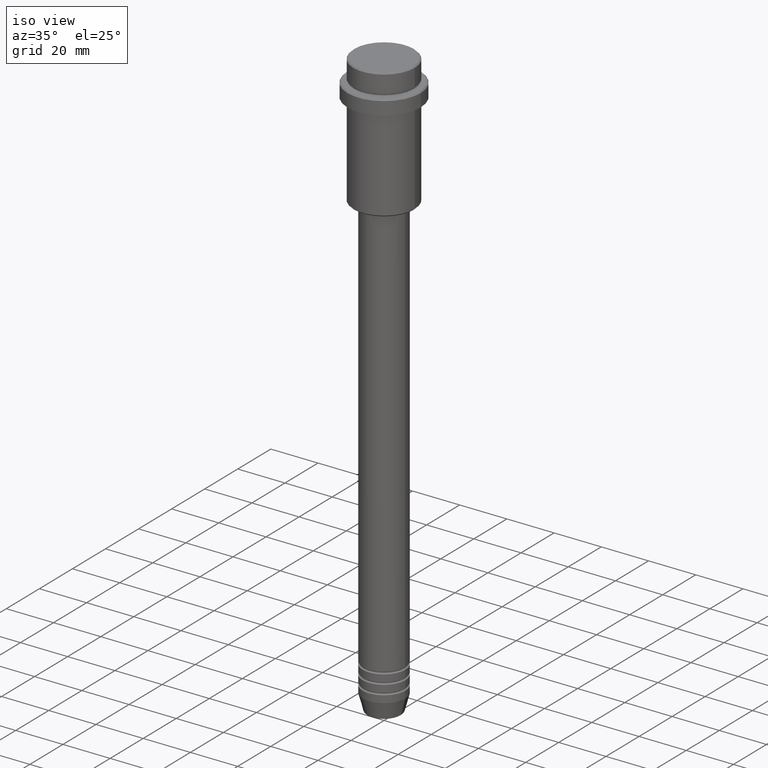
[diagram: clean part render]
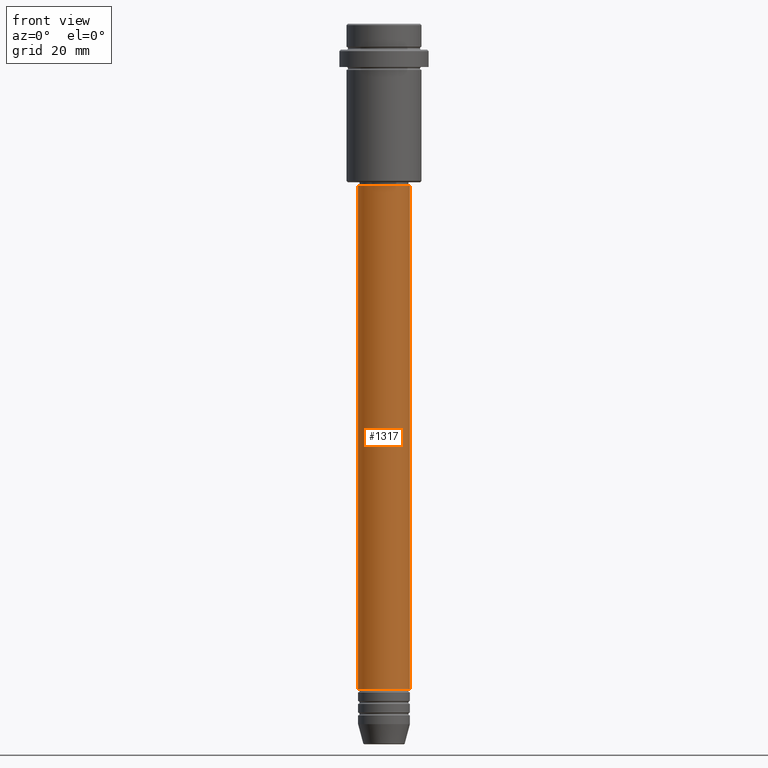
[diagram: tour spotlight — one face highlighted and labeled with its STEP entity id]
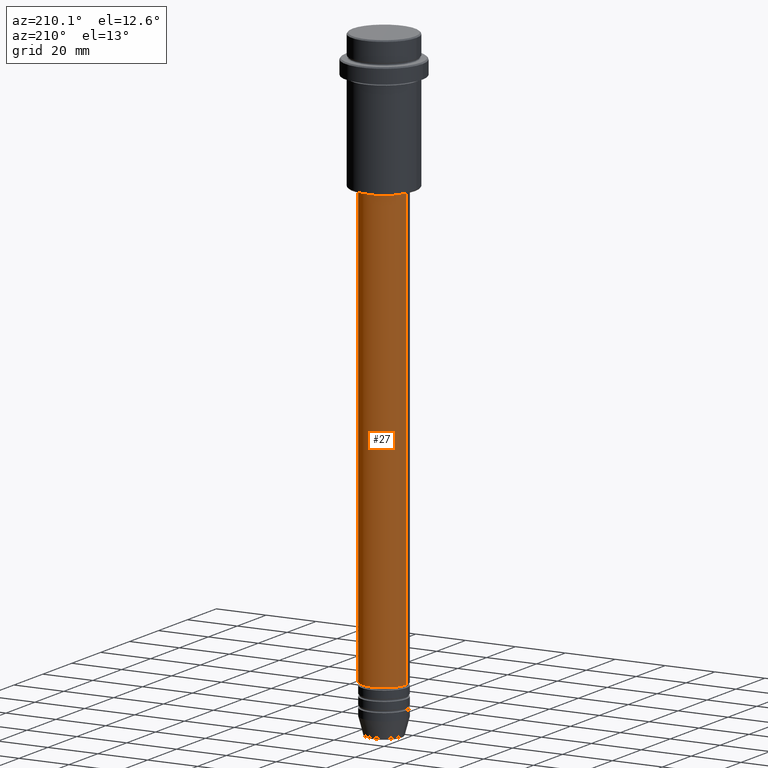
[diagram: tour spotlight — one face highlighted and labeled with its STEP entity id]
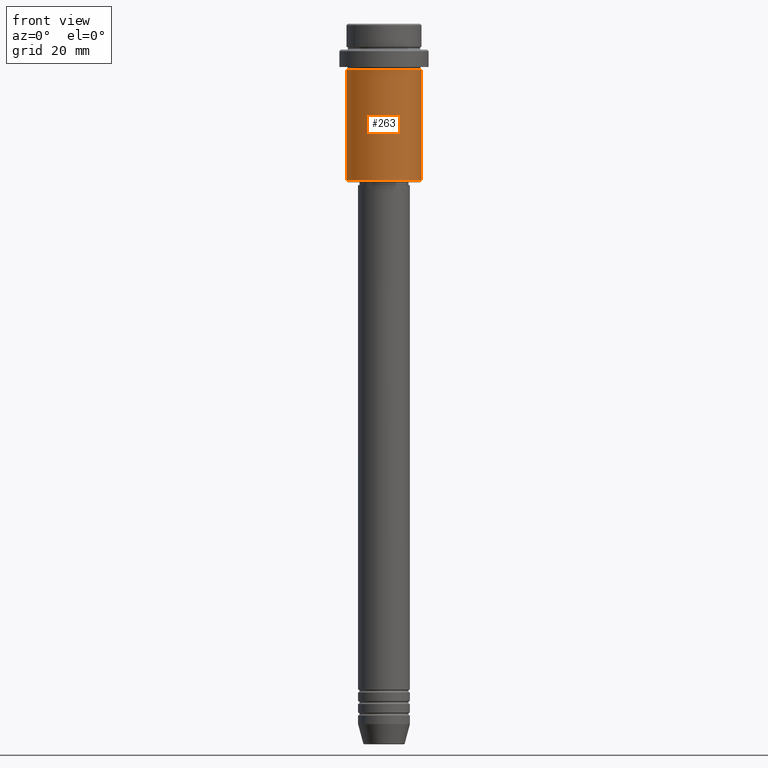
[diagram: tour spotlight — one face highlighted and labeled with its STEP entity id]
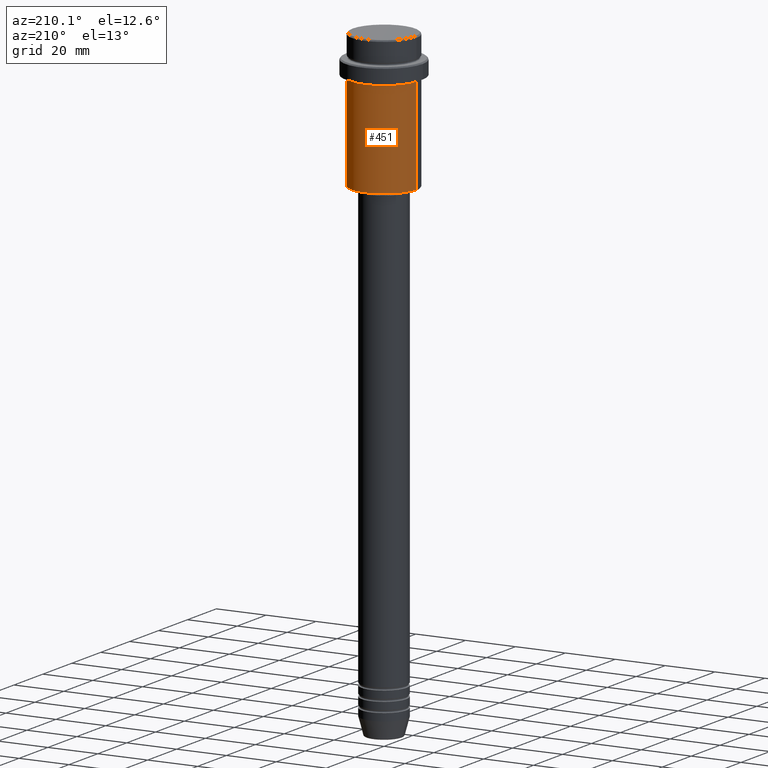
[diagram: tour spotlight — one face highlighted and labeled with its STEP entity id]
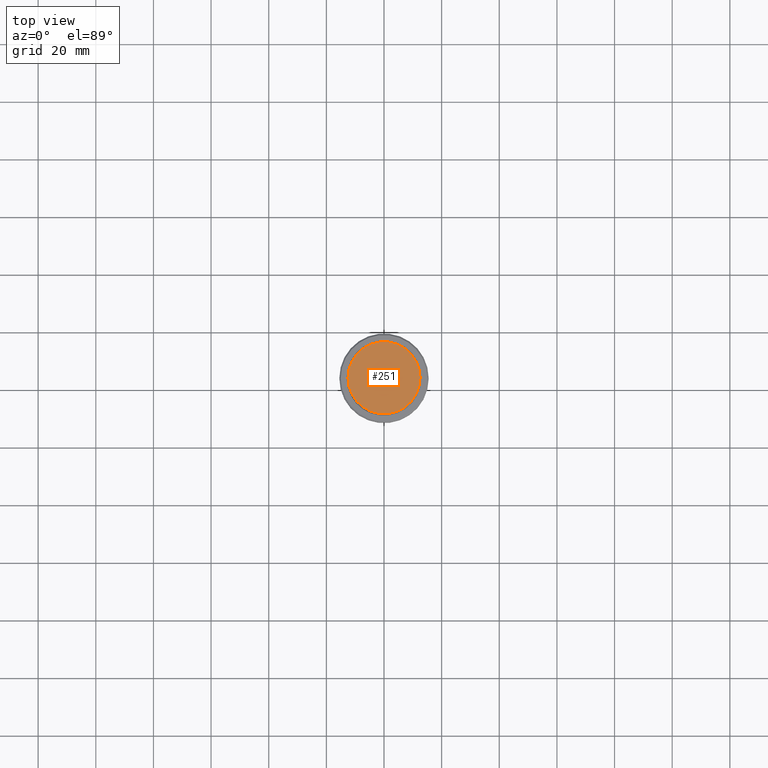
[diagram: tour spotlight — one face highlighted and labeled with its STEP entity id]
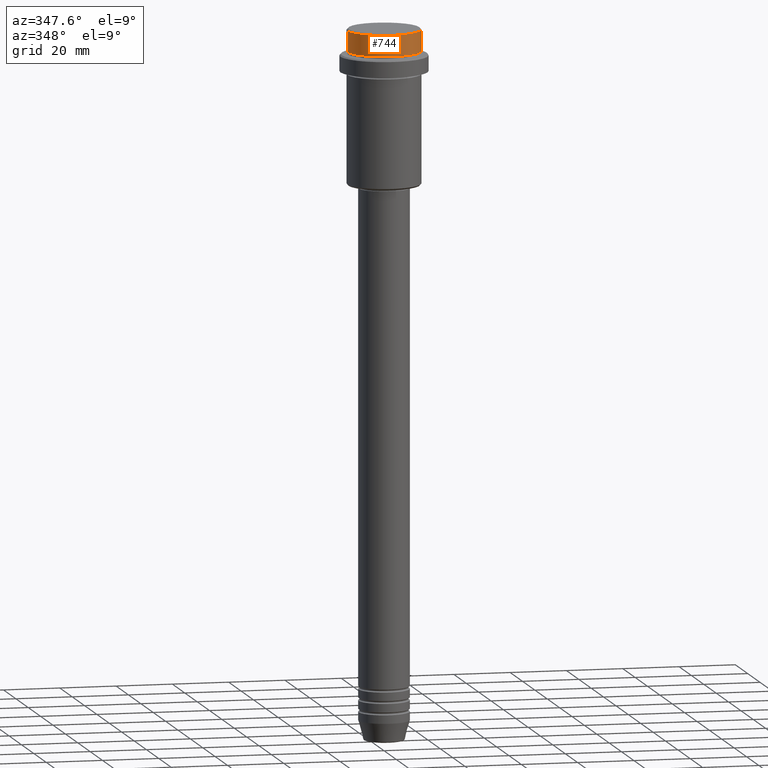
[diagram: tour spotlight — one face highlighted and labeled with its STEP entity id]
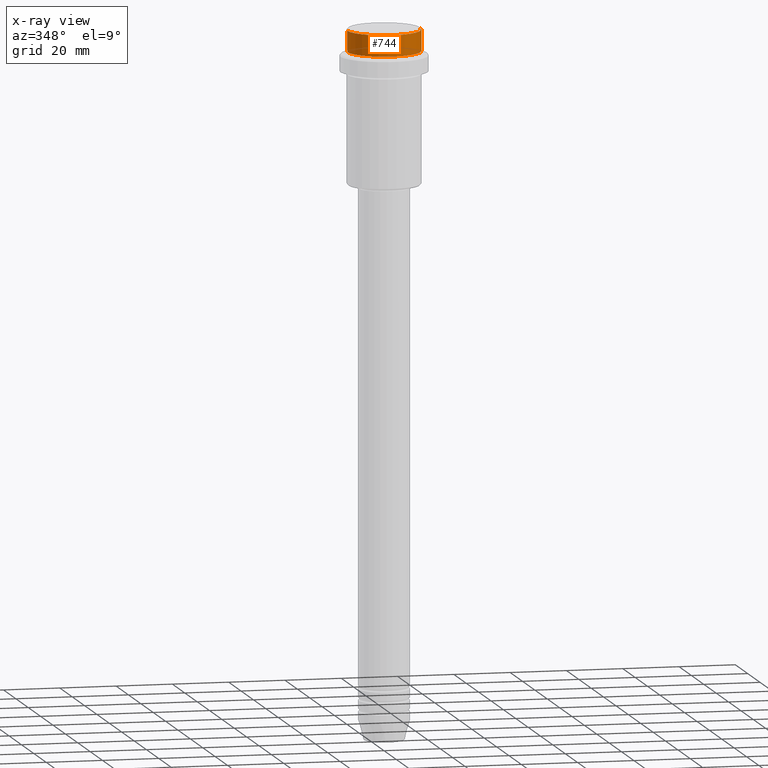
[diagram: x-ray of the same camera — body ghosted, this tour face saturated]
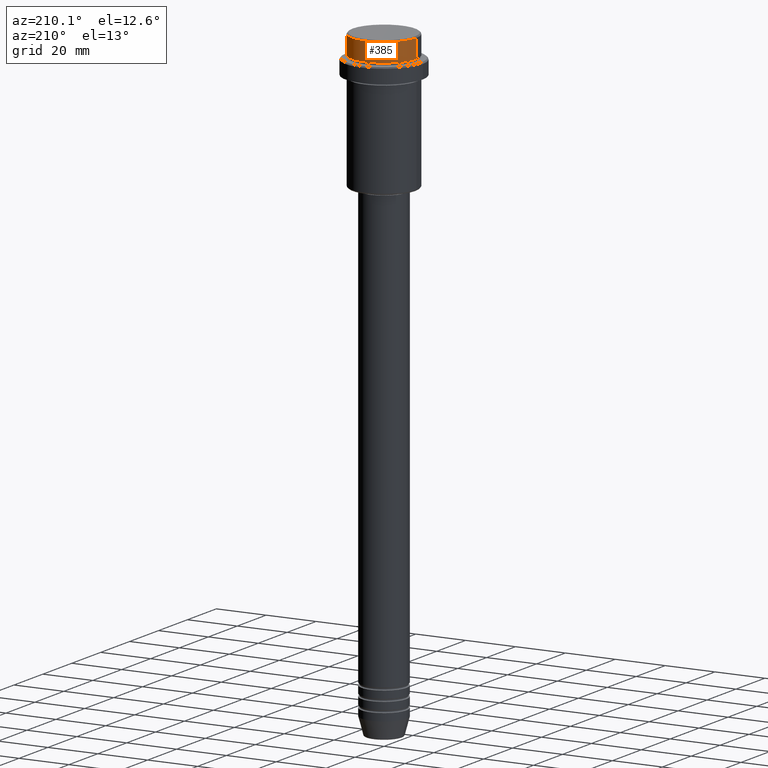
[diagram: tour spotlight — one face highlighted and labeled with its STEP entity id]
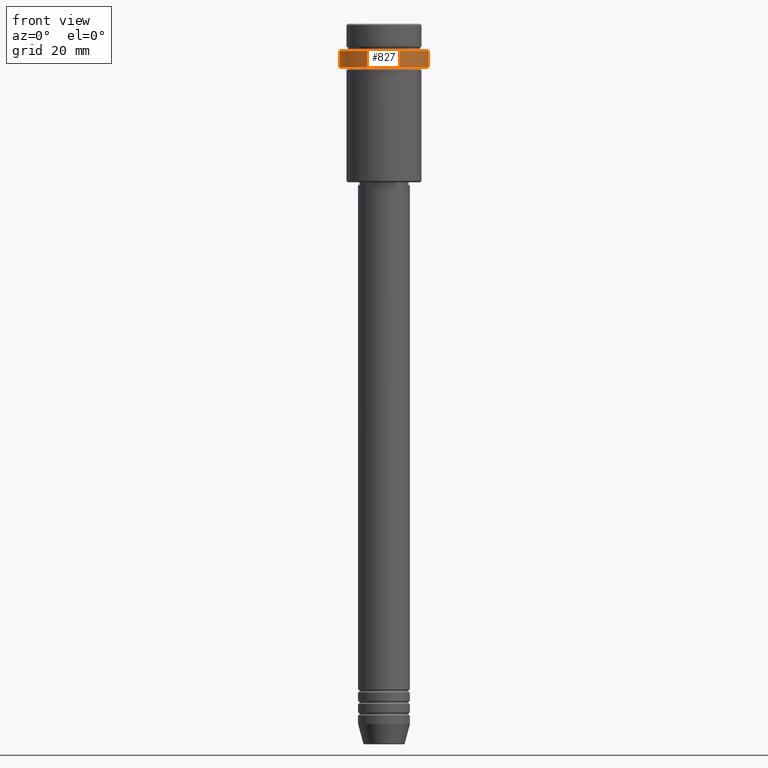
[diagram: tour spotlight — one face highlighted and labeled with its STEP entity id]
A machine part: a face-by-face anatomy tour. The part has 52 B-rep faces; the first image is the clean iso view, then the 8 largest visible faces are spotlighted one at a time (largest first), each with its STEP entity span.

Face 1 — front view, entity #1317. In plain terms, the highlighted cylindrical surface (edge-blend (fillet) strip) has radius 9 mm, axis along (-0, -0, 1).
Definition (entity closure, byte-faithful):
#105 = CARTESIAN_POINT ( 'NONE',  ( 9.000000000000001776, 0.000000000000000000, 0.000000000000000000 ) ) ;
#142 = ORIENTED_EDGE ( 'NONE', *, *, #687, .F. ) ;
#176 = VERTEX_POINT ( 'NONE', #693 ) ;
#200 = ORIENTED_EDGE ( 'NONE', *, *, #606, .F. ) ;
#243 = CARTESIAN_POINT ( 'NONE',  ( 9.000000000000001776, 0.000000000000000000, -56.00000000000000000 ) ) ;
#245 = LINE ( 'NONE', #696, #959 ) ;
#255 = CARTESIAN_POINT ( 'NONE',  ( -9.000000000000001776, 1.102182119232617911E-15, -56.00000000000000000 ) ) ;
#284 = CIRCLE ( 'NONE', #636, 9.000000000000001776 ) ;
#315 = CARTESIAN_POINT ( 'NONE',  ( 0.000000000000000000, 0.000000000000000000, -56.00000000000000000 ) ) ;
#342 = DIRECTION ( 'NONE',  ( 1.000000000000000000, 0.000000000000000000, 0.000000000000000000 ) ) ;
#347 = FACE_OUTER_BOUND ( 'NONE', #671, .T. ) ;
#465 = DIRECTION ( 'NONE',  ( -0.000000000000000000, -0.000000000000000000, 1.000000000000000000 ) ) ;
#483 = VERTEX_POINT ( 'NONE', #243 ) ;
#530 = DIRECTION ( 'NONE',  ( 1.000000000000000000, 0.000000000000000000, 0.000000000000000000 ) ) ;
#551 = DIRECTION ( 'NONE',  ( -0.000000000000000000, -0.000000000000000000, 1.000000000000000000 ) ) ;
#578 = CYLINDRICAL_SURFACE ( 'NONE', #1255, 9.000000000000001776 ) ;
#606 = EDGE_CURVE ( 'NONE', #1014, #625, #245, .T. ) ;
#625 = VERTEX_POINT ( 'NONE', #255 ) ;
#634 = CARTESIAN_POINT ( 'NONE',  ( 0.000000000000000000, 0.000000000000000000, -230.9999999999998863 ) ) ;
#636 = AXIS2_PLACEMENT_3D ( 'NONE', #315, #649, #955 ) ;
#649 = DIRECTION ( 'NONE',  ( -0.000000000000000000, -0.000000000000000000, 1.000000000000000000 ) ) ;
#671 = EDGE_LOOP ( 'NONE', ( #200, #1141, #814, #142 ) ) ;
#687 = EDGE_CURVE ( 'NONE', #625, #483, #284, .T. ) ;
#688 = DIRECTION ( 'NONE',  ( -0.000000000000000000, -0.000000000000000000, 1.000000000000000000 ) ) ;
#693 = CARTESIAN_POINT ( 'NONE',  ( 9.000000000000000000, 0.000000000000000000, -230.9999999999998863 ) ) ;
#696 = CARTESIAN_POINT ( 'NONE',  ( -9.000000000000001776, 1.102182119232617911E-15, 0.000000000000000000 ) ) ;
#738 = EDGE_CURVE ( 'NONE', #1014, #176, #978, .T. ) ;
#814 = ORIENTED_EDGE ( 'NONE', *, *, #1221, .T. ) ;
#826 = CARTESIAN_POINT ( 'NONE',  ( -9.000000000000000000, 1.102182119232617714E-15, -230.9999999999998863 ) ) ;
#928 = VECTOR ( 'NONE', #551, 1000.000000000000000 ) ;
#955 = DIRECTION ( 'NONE',  ( 1.000000000000000000, 0.000000000000000000, 0.000000000000000000 ) ) ;
#959 = VECTOR ( 'NONE', #688, 1000.000000000000000 ) ;
#961 = LINE ( 'NONE', #105, #928 ) ;
#978 = CIRCLE ( 'NONE', #1177, 9.000000000000000000 ) ;
#1014 = VERTEX_POINT ( 'NONE', #826 ) ;
#1102 = CARTESIAN_POINT ( 'NONE',  ( 0.000000000000000000, 0.000000000000000000, 0.000000000000000000 ) ) ;
#1141 = ORIENTED_EDGE ( 'NONE', *, *, #738, .T. ) ;
#1177 = AXIS2_PLACEMENT_3D ( 'NONE', #634, #1390, #530 ) ;
#1221 = EDGE_CURVE ( 'NONE', #176, #483, #961, .T. ) ;
#1255 = AXIS2_PLACEMENT_3D ( 'NONE', #1102, #465, #342 ) ;
#1317 = ADVANCED_FACE ( 'NONE', ( #347 ), #578, .T. ) ;
#1390 = DIRECTION ( 'NONE',  ( -0.000000000000000000, -0.000000000000000000, 1.000000000000000000 ) ) ;

Face 2 — auxiliary view, entity #27. In plain terms, the highlighted cylindrical surface (edge-blend (fillet) strip) has radius 9 mm, axis along (-0, -0, 1).
Definition (entity closure, byte-faithful):
#27 = ADVANCED_FACE ( 'NONE', ( #1387 ), #1393, .T. ) ;
#105 = CARTESIAN_POINT ( 'NONE',  ( 9.000000000000001776, 0.000000000000000000, 0.000000000000000000 ) ) ;
#176 = VERTEX_POINT ( 'NONE', #693 ) ;
#183 = ORIENTED_EDGE ( 'NONE', *, *, #1221, .F. ) ;
#189 = DIRECTION ( 'NONE',  ( 1.000000000000000000, 0.000000000000000000, 0.000000000000000000 ) ) ;
#243 = CARTESIAN_POINT ( 'NONE',  ( 9.000000000000001776, 0.000000000000000000, -56.00000000000000000 ) ) ;
#245 = LINE ( 'NONE', #696, #959 ) ;
#255 = CARTESIAN_POINT ( 'NONE',  ( -9.000000000000001776, 1.102182119232617911E-15, -56.00000000000000000 ) ) ;
#269 = DIRECTION ( 'NONE',  ( -0.000000000000000000, -0.000000000000000000, 1.000000000000000000 ) ) ;
#405 = EDGE_CURVE ( 'NONE', #176, #1014, #1334, .T. ) ;
#483 = VERTEX_POINT ( 'NONE', #243 ) ;
#551 = DIRECTION ( 'NONE',  ( -0.000000000000000000, -0.000000000000000000, 1.000000000000000000 ) ) ;
#606 = EDGE_CURVE ( 'NONE', #1014, #625, #245, .T. ) ;
#621 = CARTESIAN_POINT ( 'NONE',  ( 0.000000000000000000, 0.000000000000000000, -230.9999999999998863 ) ) ;
#625 = VERTEX_POINT ( 'NONE', #255 ) ;
#664 = EDGE_LOOP ( 'NONE', ( #689, #1174, #1119, #183 ) ) ;
#688 = DIRECTION ( 'NONE',  ( -0.000000000000000000, -0.000000000000000000, 1.000000000000000000 ) ) ;
#689 = ORIENTED_EDGE ( 'NONE', *, *, #405, .T. ) ;
#693 = CARTESIAN_POINT ( 'NONE',  ( 9.000000000000000000, 0.000000000000000000, -230.9999999999998863 ) ) ;
#696 = CARTESIAN_POINT ( 'NONE',  ( -9.000000000000001776, 1.102182119232617911E-15, 0.000000000000000000 ) ) ;
#710 = CARTESIAN_POINT ( 'NONE',  ( 0.000000000000000000, 0.000000000000000000, 0.000000000000000000 ) ) ;
#742 = DIRECTION ( 'NONE',  ( -0.000000000000000000, -0.000000000000000000, 1.000000000000000000 ) ) ;
#789 = AXIS2_PLACEMENT_3D ( 'NONE', #1173, #1296, #1078 ) ;
#809 = EDGE_CURVE ( 'NONE', #483, #625, #1293, .T. ) ;
#826 = CARTESIAN_POINT ( 'NONE',  ( -9.000000000000000000, 1.102182119232617714E-15, -230.9999999999998863 ) ) ;
#928 = VECTOR ( 'NONE', #551, 1000.000000000000000 ) ;
#938 = DIRECTION ( 'NONE',  ( 1.000000000000000000, 0.000000000000000000, 0.000000000000000000 ) ) ;
#952 = AXIS2_PLACEMENT_3D ( 'NONE', #621, #742, #189 ) ;
#959 = VECTOR ( 'NONE', #688, 1000.000000000000000 ) ;
#961 = LINE ( 'NONE', #105, #928 ) ;
#1014 = VERTEX_POINT ( 'NONE', #826 ) ;
#1078 = DIRECTION ( 'NONE',  ( 1.000000000000000000, 0.000000000000000000, 0.000000000000000000 ) ) ;
#1119 = ORIENTED_EDGE ( 'NONE', *, *, #809, .F. ) ;
#1173 = CARTESIAN_POINT ( 'NONE',  ( 0.000000000000000000, 0.000000000000000000, -56.00000000000000000 ) ) ;
#1174 = ORIENTED_EDGE ( 'NONE', *, *, #606, .T. ) ;
#1183 = AXIS2_PLACEMENT_3D ( 'NONE', #710, #269, #938 ) ;
#1221 = EDGE_CURVE ( 'NONE', #176, #483, #961, .T. ) ;
#1293 = CIRCLE ( 'NONE', #789, 9.000000000000001776 ) ;
#1296 = DIRECTION ( 'NONE',  ( -0.000000000000000000, -0.000000000000000000, 1.000000000000000000 ) ) ;
#1334 = CIRCLE ( 'NONE', #952, 9.000000000000000000 ) ;
#1387 = FACE_OUTER_BOUND ( 'NONE', #664, .T. ) ;
#1393 = CYLINDRICAL_SURFACE ( 'NONE', #1183, 9.000000000000001776 ) ;

Face 3 — front view, entity #263. In plain terms, the highlighted cylindrical surface (partial cylindrical patch) has radius 13 mm, axis along (-0, -0, 1).
Definition (entity closure, byte-faithful):
#50 = FACE_OUTER_BOUND ( 'NONE', #459, .T. ) ;
#93 = ORIENTED_EDGE ( 'NONE', *, *, #1212, .T. ) ;
#133 = DIRECTION ( 'NONE',  ( -0.000000000000000000, -0.000000000000000000, 1.000000000000000000 ) ) ;
#137 = ORIENTED_EDGE ( 'NONE', *, *, #1327, .T. ) ;
#229 = CARTESIAN_POINT ( 'NONE',  ( -13.00000000000000000, 1.592040838891559095E-15, 0.000000000000000000 ) ) ;
#234 = VERTEX_POINT ( 'NONE', #1195 ) ;
#263 = ADVANCED_FACE ( 'NONE', ( #50 ), #489, .T. ) ;
#316 = ORIENTED_EDGE ( 'NONE', *, *, #1368, .F. ) ;
#390 = DIRECTION ( 'NONE',  ( -0.000000000000000000, -0.000000000000000000, 1.000000000000000000 ) ) ;
#459 = EDGE_LOOP ( 'NONE', ( #316, #93, #137, #526 ) ) ;
#470 = CARTESIAN_POINT ( 'NONE',  ( 0.000000000000000000, 0.000000000000000000, -16.00000000000000000 ) ) ;
#481 = CARTESIAN_POINT ( 'NONE',  ( 0.000000000000000000, 0.000000000000000000, 0.000000000000000000 ) ) ;
#489 = CYLINDRICAL_SURFACE ( 'NONE', #522, 13.00000000000000000 ) ;
#507 = CARTESIAN_POINT ( 'NONE',  ( 13.00000000000000000, 0.000000000000000000, -54.50000000000000000 ) ) ;
#522 = AXIS2_PLACEMENT_3D ( 'NONE', #481, #605, #1046 ) ;
#526 = ORIENTED_EDGE ( 'NONE', *, *, #1021, .F. ) ;
#541 = CARTESIAN_POINT ( 'NONE',  ( 13.00000000000000000, 0.000000000000000000, -16.00000000000000000 ) ) ;
#570 = VERTEX_POINT ( 'NONE', #507 ) ;
#605 = DIRECTION ( 'NONE',  ( -0.000000000000000000, -0.000000000000000000, 1.000000000000000000 ) ) ;
#659 = DIRECTION ( 'NONE',  ( -1.000000000000000000, 0.000000000000000000, 0.000000000000000000 ) ) ;
#677 = DIRECTION ( 'NONE',  ( -0.000000000000000000, -0.000000000000000000, 1.000000000000000000 ) ) ;
#749 = CIRCLE ( 'NONE', #856, 13.00000000000000000 ) ;
#772 = CIRCLE ( 'NONE', #957, 13.00000000000000000 ) ;
#793 = VECTOR ( 'NONE', #133, 1000.000000000000000 ) ;
#856 = AXIS2_PLACEMENT_3D ( 'NONE', #470, #390, #1332 ) ;
#859 = CARTESIAN_POINT ( 'NONE',  ( -13.00000000000000000, 1.592040838891559095E-15, -54.50000000000000000 ) ) ;
#957 = AXIS2_PLACEMENT_3D ( 'NONE', #1403, #1196, #659 ) ;
#1021 = EDGE_CURVE ( 'NONE', #234, #1170, #749, .T. ) ;
#1046 = DIRECTION ( 'NONE',  ( 1.000000000000000000, 0.000000000000000000, 0.000000000000000000 ) ) ;
#1106 = CARTESIAN_POINT ( 'NONE',  ( 13.00000000000000000, 0.000000000000000000, 0.000000000000000000 ) ) ;
#1109 = VERTEX_POINT ( 'NONE', #859 ) ;
#1120 = LINE ( 'NONE', #1106, #793 ) ;
#1170 = VERTEX_POINT ( 'NONE', #541 ) ;
#1195 = CARTESIAN_POINT ( 'NONE',  ( -13.00000000000000000, 1.592040838891559095E-15, -16.00000000000000000 ) ) ;
#1196 = DIRECTION ( 'NONE',  ( -0.000000000000000000, -0.000000000000000000, 1.000000000000000000 ) ) ;
#1212 = EDGE_CURVE ( 'NONE', #1109, #570, #772, .T. ) ;
#1218 = LINE ( 'NONE', #229, #1408 ) ;
#1327 = EDGE_CURVE ( 'NONE', #570, #1170, #1120, .T. ) ;
#1332 = DIRECTION ( 'NONE',  ( 1.000000000000000000, 0.000000000000000000, 0.000000000000000000 ) ) ;
#1368 = EDGE_CURVE ( 'NONE', #1109, #234, #1218, .T. ) ;
#1403 = CARTESIAN_POINT ( 'NONE',  ( 0.000000000000000000, 0.000000000000000000, -54.50000000000000000 ) ) ;
#1408 = VECTOR ( 'NONE', #677, 1000.000000000000000 ) ;

Face 4 — auxiliary view, entity #451. In plain terms, the highlighted cylindrical surface (partial cylindrical patch) has radius 13 mm, axis along (-0, -0, 1).
Definition (entity closure, byte-faithful):
#133 = DIRECTION ( 'NONE',  ( -0.000000000000000000, -0.000000000000000000, 1.000000000000000000 ) ) ;
#229 = CARTESIAN_POINT ( 'NONE',  ( -13.00000000000000000, 1.592040838891559095E-15, 0.000000000000000000 ) ) ;
#234 = VERTEX_POINT ( 'NONE', #1195 ) ;
#291 = DIRECTION ( 'NONE',  ( 1.000000000000000000, 0.000000000000000000, 0.000000000000000000 ) ) ;
#321 = ORIENTED_EDGE ( 'NONE', *, *, #1327, .F. ) ;
#451 = ADVANCED_FACE ( 'NONE', ( #1055 ), #505, .T. ) ;
#468 = AXIS2_PLACEMENT_3D ( 'NONE', #1369, #939, #291 ) ;
#505 = CYLINDRICAL_SURFACE ( 'NONE', #468, 13.00000000000000000 ) ;
#507 = CARTESIAN_POINT ( 'NONE',  ( 13.00000000000000000, 0.000000000000000000, -54.50000000000000000 ) ) ;
#541 = CARTESIAN_POINT ( 'NONE',  ( 13.00000000000000000, 0.000000000000000000, -16.00000000000000000 ) ) ;
#570 = VERTEX_POINT ( 'NONE', #507 ) ;
#677 = DIRECTION ( 'NONE',  ( -0.000000000000000000, -0.000000000000000000, 1.000000000000000000 ) ) ;
#701 = AXIS2_PLACEMENT_3D ( 'NONE', #1328, #766, #1198 ) ;
#709 = EDGE_CURVE ( 'NONE', #1170, #234, #927, .T. ) ;
#766 = DIRECTION ( 'NONE',  ( -0.000000000000000000, -0.000000000000000000, 1.000000000000000000 ) ) ;
#793 = VECTOR ( 'NONE', #133, 1000.000000000000000 ) ;
#844 = DIRECTION ( 'NONE',  ( 1.000000000000000000, 0.000000000000000000, 0.000000000000000000 ) ) ;
#859 = CARTESIAN_POINT ( 'NONE',  ( -13.00000000000000000, 1.592040838891559095E-15, -54.50000000000000000 ) ) ;
#872 = EDGE_CURVE ( 'NONE', #570, #1109, #1335, .T. ) ;
#927 = CIRCLE ( 'NONE', #1076, 13.00000000000000000 ) ;
#939 = DIRECTION ( 'NONE',  ( -0.000000000000000000, -0.000000000000000000, 1.000000000000000000 ) ) ;
#969 = DIRECTION ( 'NONE',  ( -0.000000000000000000, -0.000000000000000000, 1.000000000000000000 ) ) ;
#1055 = FACE_OUTER_BOUND ( 'NONE', #1117, .T. ) ;
#1076 = AXIS2_PLACEMENT_3D ( 'NONE', #1360, #969, #844 ) ;
#1101 = ORIENTED_EDGE ( 'NONE', *, *, #872, .T. ) ;
#1106 = CARTESIAN_POINT ( 'NONE',  ( 13.00000000000000000, 0.000000000000000000, 0.000000000000000000 ) ) ;
#1109 = VERTEX_POINT ( 'NONE', #859 ) ;
#1117 = EDGE_LOOP ( 'NONE', ( #1101, #1270, #1362, #321 ) ) ;
#1120 = LINE ( 'NONE', #1106, #793 ) ;
#1170 = VERTEX_POINT ( 'NONE', #541 ) ;
#1195 = CARTESIAN_POINT ( 'NONE',  ( -13.00000000000000000, 1.592040838891559095E-15, -16.00000000000000000 ) ) ;
#1198 = DIRECTION ( 'NONE',  ( -1.000000000000000000, 0.000000000000000000, 0.000000000000000000 ) ) ;
#1218 = LINE ( 'NONE', #229, #1408 ) ;
#1270 = ORIENTED_EDGE ( 'NONE', *, *, #1368, .T. ) ;
#1327 = EDGE_CURVE ( 'NONE', #570, #1170, #1120, .T. ) ;
#1328 = CARTESIAN_POINT ( 'NONE',  ( 0.000000000000000000, 0.000000000000000000, -54.50000000000000000 ) ) ;
#1335 = CIRCLE ( 'NONE', #701, 13.00000000000000000 ) ;
#1360 = CARTESIAN_POINT ( 'NONE',  ( 0.000000000000000000, 0.000000000000000000, -16.00000000000000000 ) ) ;
#1362 = ORIENTED_EDGE ( 'NONE', *, *, #709, .F. ) ;
#1368 = EDGE_CURVE ( 'NONE', #1109, #234, #1218, .T. ) ;
#1369 = CARTESIAN_POINT ( 'NONE',  ( 0.000000000000000000, 0.000000000000000000, 0.000000000000000000 ) ) ;
#1408 = VECTOR ( 'NONE', #677, 1000.000000000000000 ) ;

Face 5 — top view, entity #251. In plain terms, the highlighted planar face has unit normal (0, -0, 1).
Definition (entity closure, byte-faithful):
#45 = VERTEX_POINT ( 'NONE', #765 ) ;
#127 = DIRECTION ( 'NONE',  ( -0.000000000000000000, -0.000000000000000000, 1.000000000000000000 ) ) ;
#251 = ADVANCED_FACE ( 'NONE', ( #988 ), #1414, .T. ) ;
#270 = DIRECTION ( 'NONE',  ( 1.000000000000000000, 0.000000000000000000, 0.000000000000000000 ) ) ;
#381 = CIRCLE ( 'NONE', #660, 12.49999999999998579 ) ;
#383 = CIRCLE ( 'NONE', #1161, 12.49999999999998579 ) ;
#420 = VERTEX_POINT ( 'NONE', #919 ) ;
#550 = CARTESIAN_POINT ( 'NONE',  ( 0.000000000000000000, 0.000000000000000000, 0.000000000000000000 ) ) ;
#623 = EDGE_LOOP ( 'NONE', ( #728, #1382 ) ) ;
#632 = DIRECTION ( 'NONE',  ( 1.000000000000000000, 0.000000000000000000, 0.000000000000000000 ) ) ;
#660 = AXIS2_PLACEMENT_3D ( 'NONE', #1389, #1301, #632 ) ;
#728 = ORIENTED_EDGE ( 'NONE', *, *, #1380, .T. ) ;
#765 = CARTESIAN_POINT ( 'NONE',  ( 12.49999999999998579, 1.561424668912874125E-15, 0.000000000000000000 ) ) ;
#870 = DIRECTION ( 'NONE',  ( 0.000000000000000000, -0.000000000000000000, 1.000000000000000000 ) ) ;
#919 = CARTESIAN_POINT ( 'NONE',  ( -12.49999999999998579, 0.000000000000000000, 0.000000000000000000 ) ) ;
#958 = AXIS2_PLACEMENT_3D ( 'NONE', #550, #870, #270 ) ;
#988 = FACE_OUTER_BOUND ( 'NONE', #623, .T. ) ;
#1013 = DIRECTION ( 'NONE',  ( 1.000000000000000000, 0.000000000000000000, 0.000000000000000000 ) ) ;
#1114 = CARTESIAN_POINT ( 'NONE',  ( 0.000000000000000000, 0.000000000000000000, 0.000000000000000000 ) ) ;
#1161 = AXIS2_PLACEMENT_3D ( 'NONE', #1114, #127, #1013 ) ;
#1171 = EDGE_CURVE ( 'NONE', #45, #420, #381, .T. ) ;
#1301 = DIRECTION ( 'NONE',  ( -0.000000000000000000, -0.000000000000000000, 1.000000000000000000 ) ) ;
#1380 = EDGE_CURVE ( 'NONE', #420, #45, #383, .T. ) ;
#1382 = ORIENTED_EDGE ( 'NONE', *, *, #1171, .T. ) ;
#1389 = CARTESIAN_POINT ( 'NONE',  ( 0.000000000000000000, 0.000000000000000000, 0.000000000000000000 ) ) ;
#1414 = PLANE ( 'NONE',  #958 ) ;

Face 6 — auxiliary view, entity #744. An x-ray twin of the same camera follows (body ghosted, this face saturated) — the face is partly hidden behind the body. In plain terms, the highlighted cylindrical surface (partial cylindrical patch) has radius 13 mm, axis along (-0, -0, 1).
Definition (entity closure, byte-faithful):
#2 = VERTEX_POINT ( 'NONE', #166 ) ;
#58 = VECTOR ( 'NONE', #300, 1000.000000000000000 ) ;
#59 = CARTESIAN_POINT ( 'NONE',  ( -12.99999999999999822, 1.592040838891558898E-15, 0.000000000000000000 ) ) ;
#66 = DIRECTION ( 'NONE',  ( 1.000000000000000000, 0.000000000000000000, 0.000000000000000000 ) ) ;
#89 = FACE_OUTER_BOUND ( 'NONE', #1297, .T. ) ;
#125 = ORIENTED_EDGE ( 'NONE', *, *, #366, .T. ) ;
#166 = CARTESIAN_POINT ( 'NONE',  ( 12.99999999999999822, 0.000000000000000000, -7.999999999999998224 ) ) ;
#182 = CYLINDRICAL_SURFACE ( 'NONE', #445, 12.99999999999999822 ) ;
#248 = CARTESIAN_POINT ( 'NONE',  ( -12.99999999999999822, 1.592040838891558898E-15, -0.5000000000000037748 ) ) ;
#300 = DIRECTION ( 'NONE',  ( -0.000000000000000000, -0.000000000000000000, 1.000000000000000000 ) ) ;
#337 = AXIS2_PLACEMENT_3D ( 'NONE', #1051, #1039, #1134 ) ;
#366 = EDGE_CURVE ( 'NONE', #569, #1009, #1375, .T. ) ;
#372 = EDGE_CURVE ( 'NONE', #686, #1009, #1053, .T. ) ;
#392 = ORIENTED_EDGE ( 'NONE', *, *, #372, .F. ) ;
#396 = EDGE_CURVE ( 'NONE', #2, #569, #751, .T. ) ;
#418 = DIRECTION ( 'NONE',  ( -0.000000000000000000, -0.000000000000000000, 1.000000000000000000 ) ) ;
#445 = AXIS2_PLACEMENT_3D ( 'NONE', #821, #418, #1289 ) ;
#503 = VECTOR ( 'NONE', #937, 1000.000000000000000 ) ;
#569 = VERTEX_POINT ( 'NONE', #1350 ) ;
#611 = DIRECTION ( 'NONE',  ( 0.000000000000000000, 0.000000000000000000, -1.000000000000000000 ) ) ;
#686 = VERTEX_POINT ( 'NONE', #1087 ) ;
#692 = ORIENTED_EDGE ( 'NONE', *, *, #396, .T. ) ;
#706 = CIRCLE ( 'NONE', #337, 12.99999999999999822 ) ;
#713 = CARTESIAN_POINT ( 'NONE',  ( 0.000000000000000000, 0.000000000000000000, -0.5000000000000037748 ) ) ;
#744 = ADVANCED_FACE ( 'NONE', ( #89 ), #182, .T. ) ;
#751 = LINE ( 'NONE', #1155, #58 ) ;
#821 = CARTESIAN_POINT ( 'NONE',  ( 0.000000000000000000, 0.000000000000000000, 0.000000000000000000 ) ) ;
#937 = DIRECTION ( 'NONE',  ( -0.000000000000000000, -0.000000000000000000, 1.000000000000000000 ) ) ;
#1009 = VERTEX_POINT ( 'NONE', #248 ) ;
#1039 = DIRECTION ( 'NONE',  ( -0.000000000000000000, -0.000000000000000000, 1.000000000000000000 ) ) ;
#1051 = CARTESIAN_POINT ( 'NONE',  ( 0.000000000000000000, 0.000000000000000000, -7.999999999999998224 ) ) ;
#1053 = LINE ( 'NONE', #59, #503 ) ;
#1087 = CARTESIAN_POINT ( 'NONE',  ( -12.99999999999999822, 1.592040838891558898E-15, -7.999999999999998224 ) ) ;
#1090 = AXIS2_PLACEMENT_3D ( 'NONE', #713, #611, #66 ) ;
#1134 = DIRECTION ( 'NONE',  ( 1.000000000000000000, 0.000000000000000000, 0.000000000000000000 ) ) ;
#1155 = CARTESIAN_POINT ( 'NONE',  ( 12.99999999999999822, 0.000000000000000000, 0.000000000000000000 ) ) ;
#1200 = ORIENTED_EDGE ( 'NONE', *, *, #1384, .T. ) ;
#1289 = DIRECTION ( 'NONE',  ( 1.000000000000000000, 0.000000000000000000, 0.000000000000000000 ) ) ;
#1297 = EDGE_LOOP ( 'NONE', ( #392, #1200, #692, #125 ) ) ;
#1350 = CARTESIAN_POINT ( 'NONE',  ( 12.99999999999999822, 0.000000000000000000, -0.5000000000000037748 ) ) ;
#1375 = CIRCLE ( 'NONE', #1090, 12.99999999999999822 ) ;
#1384 = EDGE_CURVE ( 'NONE', #686, #2, #706, .T. ) ;

Face 7 — auxiliary view, entity #385. In plain terms, the highlighted cylindrical surface (partial cylindrical patch) has radius 13 mm, axis along (-0, -0, 1).
Definition (entity closure, byte-faithful):
#2 = VERTEX_POINT ( 'NONE', #166 ) ;
#58 = VECTOR ( 'NONE', #300, 1000.000000000000000 ) ;
#59 = CARTESIAN_POINT ( 'NONE',  ( -12.99999999999999822, 1.592040838891558898E-15, 0.000000000000000000 ) ) ;
#70 = DIRECTION ( 'NONE',  ( -0.000000000000000000, -0.000000000000000000, 1.000000000000000000 ) ) ;
#94 = EDGE_CURVE ( 'NONE', #2, #686, #287, .T. ) ;
#146 = DIRECTION ( 'NONE',  ( 0.000000000000000000, 0.000000000000000000, -1.000000000000000000 ) ) ;
#166 = CARTESIAN_POINT ( 'NONE',  ( 12.99999999999999822, 0.000000000000000000, -7.999999999999998224 ) ) ;
#184 = DIRECTION ( 'NONE',  ( 1.000000000000000000, 0.000000000000000000, 0.000000000000000000 ) ) ;
#228 = FACE_OUTER_BOUND ( 'NONE', #609, .T. ) ;
#248 = CARTESIAN_POINT ( 'NONE',  ( -12.99999999999999822, 1.592040838891558898E-15, -0.5000000000000037748 ) ) ;
#280 = ORIENTED_EDGE ( 'NONE', *, *, #515, .T. ) ;
#287 = CIRCLE ( 'NONE', #1405, 12.99999999999999822 ) ;
#300 = DIRECTION ( 'NONE',  ( -0.000000000000000000, -0.000000000000000000, 1.000000000000000000 ) ) ;
#322 = ORIENTED_EDGE ( 'NONE', *, *, #372, .T. ) ;
#372 = EDGE_CURVE ( 'NONE', #686, #1009, #1053, .T. ) ;
#385 = ADVANCED_FACE ( 'NONE', ( #228 ), #1011, .T. ) ;
#396 = EDGE_CURVE ( 'NONE', #2, #569, #751, .T. ) ;
#417 = CARTESIAN_POINT ( 'NONE',  ( 0.000000000000000000, 0.000000000000000000, 0.000000000000000000 ) ) ;
#454 = DIRECTION ( 'NONE',  ( -0.000000000000000000, -0.000000000000000000, 1.000000000000000000 ) ) ;
#503 = VECTOR ( 'NONE', #937, 1000.000000000000000 ) ;
#515 = EDGE_CURVE ( 'NONE', #1009, #569, #1409, .T. ) ;
#569 = VERTEX_POINT ( 'NONE', #1350 ) ;
#582 = CARTESIAN_POINT ( 'NONE',  ( 0.000000000000000000, 0.000000000000000000, -0.5000000000000037748 ) ) ;
#609 = EDGE_LOOP ( 'NONE', ( #762, #322, #280, #1069 ) ) ;
#656 = DIRECTION ( 'NONE',  ( 1.000000000000000000, 0.000000000000000000, 0.000000000000000000 ) ) ;
#686 = VERTEX_POINT ( 'NONE', #1087 ) ;
#751 = LINE ( 'NONE', #1155, #58 ) ;
#762 = ORIENTED_EDGE ( 'NONE', *, *, #94, .T. ) ;
#794 = AXIS2_PLACEMENT_3D ( 'NONE', #582, #146, #1025 ) ;
#895 = CARTESIAN_POINT ( 'NONE',  ( 0.000000000000000000, 0.000000000000000000, -7.999999999999998224 ) ) ;
#937 = DIRECTION ( 'NONE',  ( -0.000000000000000000, -0.000000000000000000, 1.000000000000000000 ) ) ;
#1009 = VERTEX_POINT ( 'NONE', #248 ) ;
#1011 = CYLINDRICAL_SURFACE ( 'NONE', #1299, 12.99999999999999822 ) ;
#1025 = DIRECTION ( 'NONE',  ( 1.000000000000000000, 0.000000000000000000, 0.000000000000000000 ) ) ;
#1053 = LINE ( 'NONE', #59, #503 ) ;
#1069 = ORIENTED_EDGE ( 'NONE', *, *, #396, .F. ) ;
#1087 = CARTESIAN_POINT ( 'NONE',  ( -12.99999999999999822, 1.592040838891558898E-15, -7.999999999999998224 ) ) ;
#1155 = CARTESIAN_POINT ( 'NONE',  ( 12.99999999999999822, 0.000000000000000000, 0.000000000000000000 ) ) ;
#1299 = AXIS2_PLACEMENT_3D ( 'NONE', #417, #454, #184 ) ;
#1350 = CARTESIAN_POINT ( 'NONE',  ( 12.99999999999999822, 0.000000000000000000, -0.5000000000000037748 ) ) ;
#1405 = AXIS2_PLACEMENT_3D ( 'NONE', #895, #70, #656 ) ;
#1409 = CIRCLE ( 'NONE', #794, 12.99999999999999822 ) ;

Face 8 — front view, entity #827. In plain terms, the highlighted cylindrical surface (partial cylindrical patch) has radius 15.5 mm, axis along (-0, -0, 1).
Definition (entity closure, byte-faithful):
#47 = CARTESIAN_POINT ( 'NONE',  ( 15.50000000000000000, 0.000000000000000000, 0.000000000000000000 ) ) ;
#60 = DIRECTION ( 'NONE',  ( 0.000000000000000000, 0.000000000000000000, -1.000000000000000000 ) ) ;
#87 = DIRECTION ( 'NONE',  ( -0.000000000000000000, -0.000000000000000000, 1.000000000000000000 ) ) ;
#208 = LINE ( 'NONE', #973, #637 ) ;
#215 = CIRCLE ( 'NONE', #1034, 15.50000000000000000 ) ;
#222 = DIRECTION ( 'NONE',  ( -0.000000000000000000, -0.000000000000000000, 1.000000000000000000 ) ) ;
#225 = CYLINDRICAL_SURFACE ( 'NONE', #422, 15.50000000000000000 ) ;
#361 = ORIENTED_EDGE ( 'NONE', *, *, #587, .T. ) ;
#373 = DIRECTION ( 'NONE',  ( 1.000000000000000000, 0.000000000000000000, 0.000000000000000000 ) ) ;
#422 = AXIS2_PLACEMENT_3D ( 'NONE', #861, #222, #867 ) ;
#430 = VERTEX_POINT ( 'NONE', #1044 ) ;
#433 = EDGE_CURVE ( 'NONE', #430, #1028, #712, .T. ) ;
#553 = DIRECTION ( 'NONE',  ( 1.000000000000000000, 0.000000000000000000, 0.000000000000000000 ) ) ;
#587 = EDGE_CURVE ( 'NONE', #1028, #916, #215, .T. ) ;
#598 = CARTESIAN_POINT ( 'NONE',  ( 0.000000000000000000, 0.000000000000000000, -9.499999999999957367 ) ) ;
#637 = VECTOR ( 'NONE', #87, 1000.000000000000000 ) ;
#675 = FACE_OUTER_BOUND ( 'NONE', #1024, .T. ) ;
#682 = VERTEX_POINT ( 'NONE', #1269 ) ;
#712 = LINE ( 'NONE', #47, #907 ) ;
#722 = AXIS2_PLACEMENT_3D ( 'NONE', #1104, #1323, #553 ) ;
#827 = ADVANCED_FACE ( 'NONE', ( #675 ), #225, .T. ) ;
#861 = CARTESIAN_POINT ( 'NONE',  ( 0.000000000000000000, 0.000000000000000000, 0.000000000000000000 ) ) ;
#867 = DIRECTION ( 'NONE',  ( 1.000000000000000000, 0.000000000000000000, 0.000000000000000000 ) ) ;
#874 = ORIENTED_EDGE ( 'NONE', *, *, #890, .T. ) ;
#890 = EDGE_CURVE ( 'NONE', #682, #430, #1313, .T. ) ;
#907 = VECTOR ( 'NONE', #925, 1000.000000000000000 ) ;
#911 = ORIENTED_EDGE ( 'NONE', *, *, #433, .T. ) ;
#916 = VERTEX_POINT ( 'NONE', #1304 ) ;
#925 = DIRECTION ( 'NONE',  ( -0.000000000000000000, -0.000000000000000000, 1.000000000000000000 ) ) ;
#973 = CARTESIAN_POINT ( 'NONE',  ( -15.50000000000000000, 1.898202538678397557E-15, 0.000000000000000000 ) ) ;
#1023 = CARTESIAN_POINT ( 'NONE',  ( 15.50000000000000000, 0.000000000000000000, -9.499999999999957367 ) ) ;
#1024 = EDGE_LOOP ( 'NONE', ( #1324, #874, #911, #361 ) ) ;
#1028 = VERTEX_POINT ( 'NONE', #1023 ) ;
#1034 = AXIS2_PLACEMENT_3D ( 'NONE', #598, #60, #373 ) ;
#1044 = CARTESIAN_POINT ( 'NONE',  ( 15.50000000000000000, 0.000000000000000000, -15.00000000000000178 ) ) ;
#1104 = CARTESIAN_POINT ( 'NONE',  ( 0.000000000000000000, 0.000000000000000000, -15.00000000000000178 ) ) ;
#1136 = EDGE_CURVE ( 'NONE', #682, #916, #208, .T. ) ;
#1269 = CARTESIAN_POINT ( 'NONE',  ( -15.50000000000000000, 1.898202538678397557E-15, -15.00000000000000178 ) ) ;
#1304 = CARTESIAN_POINT ( 'NONE',  ( -15.50000000000000000, 1.898202538678397557E-15, -9.499999999999957367 ) ) ;
#1313 = CIRCLE ( 'NONE', #722, 15.50000000000000000 ) ;
#1323 = DIRECTION ( 'NONE',  ( -0.000000000000000000, -0.000000000000000000, 1.000000000000000000 ) ) ;
#1324 = ORIENTED_EDGE ( 'NONE', *, *, #1136, .F. ) ;